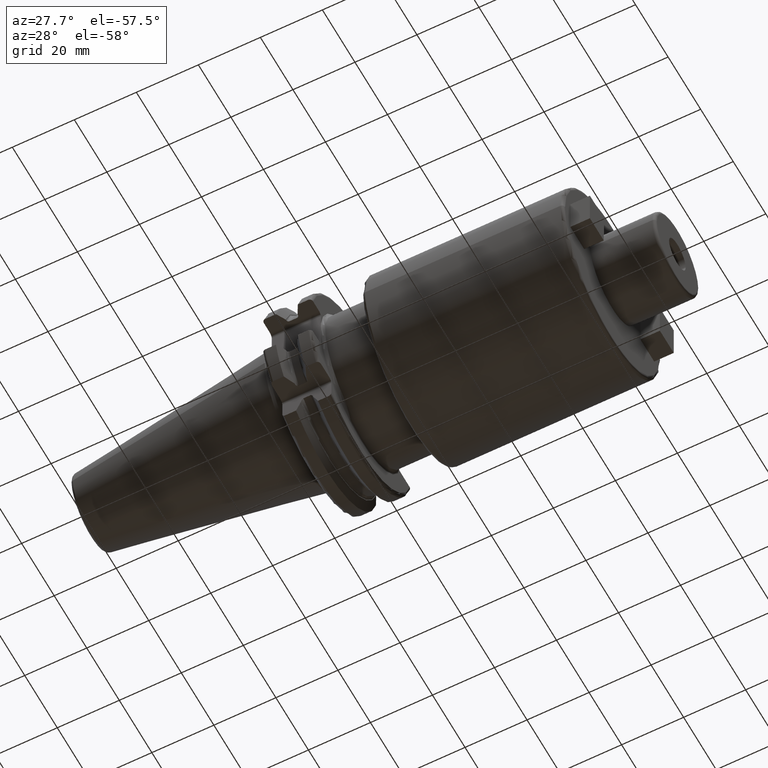
[diagram: clean part render]
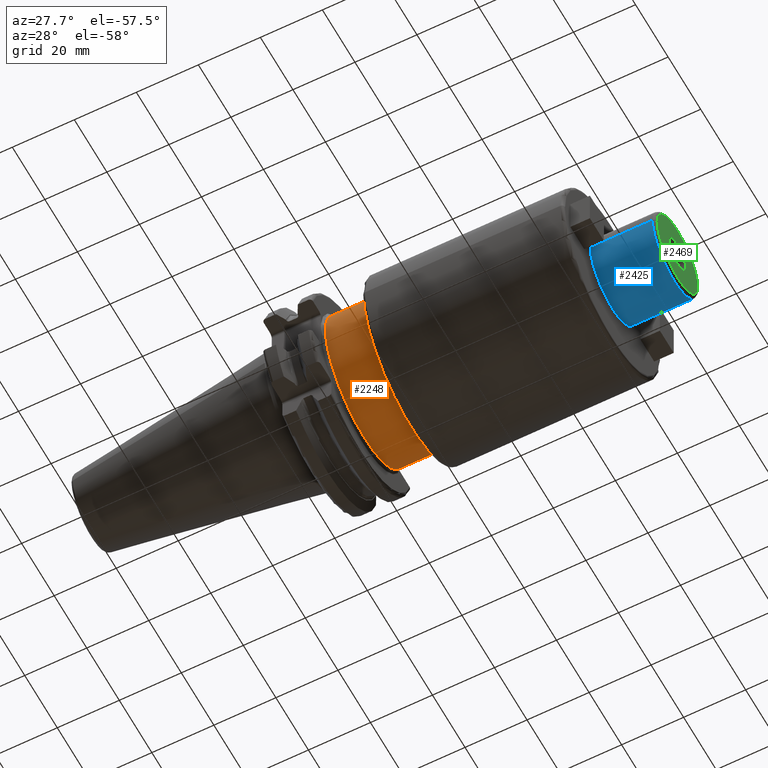
[diagram: same view with three faces highlighted in distinct colors, each labeled with its STEP entity id]
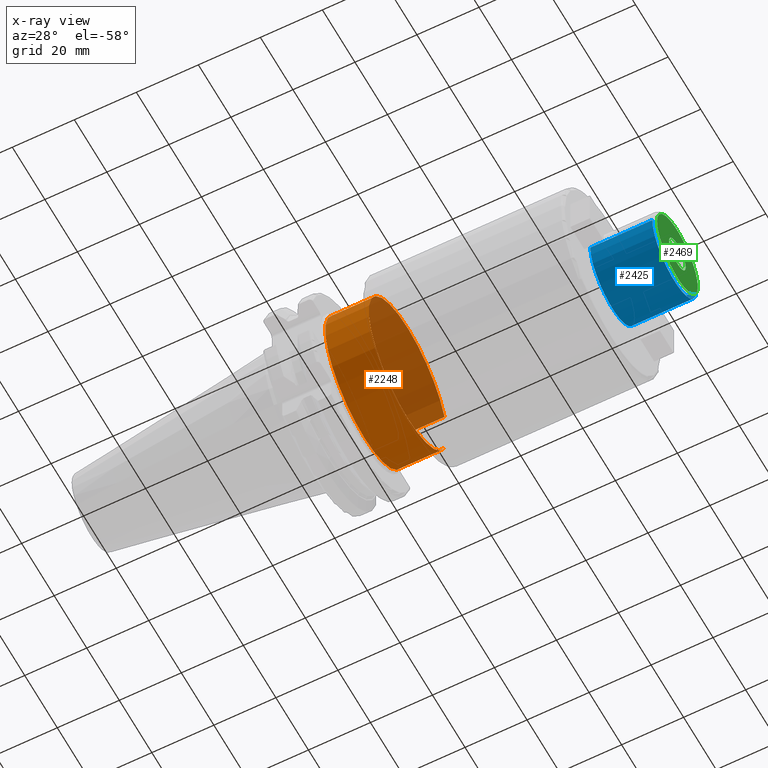
[diagram: x-ray of the same camera — body ghosted, the three highlighted faces saturated]
A machine part, auxiliary view with three faces highlighted in distinct colors.
The next image is the same camera in x-ray (body ghosted, the three faces saturated) — at least one of them is partly hidden behind the body in this view.
Their STEP definitions:

[orange] entity #2248 — the highlighted cylindrical surface (partial cylindrical patch) has radius 24 mm, axis along (1, 0, 0).
#299=DIRECTION('',(1.E0,0.E0,0.E0));
#300=VECTOR('',#299,1.4E1);
#301=CARTESIAN_POINT('',(2.005E1,2.255E1,-8.215686216014E0));
#302=LINE('',#301,#300);
#303=CARTESIAN_POINT('',(2.005E1,0.E0,0.E0));
#304=DIRECTION('',(-1.E0,0.E0,0.E0));
#305=DIRECTION('',(0.E0,9.395833333333E-1,-3.423202590006E-1));
#306=AXIS2_PLACEMENT_3D('',#303,#304,#305);
#308=DIRECTION('',(1.E0,0.E0,0.E0));
#309=VECTOR('',#308,1.4E1);
#310=CARTESIAN_POINT('',(2.005E1,2.255E1,8.215686216014E0));
#311=LINE('',#310,#309);
#334=CARTESIAN_POINT('',(3.405E1,0.E0,0.E0));
#335=DIRECTION('',(-1.E0,0.E0,0.E0));
#336=DIRECTION('',(0.E0,9.395833333333E-1,-3.423202590006E-1));
#337=AXIS2_PLACEMENT_3D('',#334,#335,#336);
#1824=CARTESIAN_POINT('',(2.005E1,2.255E1,8.215686216014E0));
#1825=CARTESIAN_POINT('',(3.405E1,2.255E1,8.215686216014E0));
#1826=VERTEX_POINT('',#1824);
#1827=VERTEX_POINT('',#1825);
#1828=CARTESIAN_POINT('',(2.005E1,2.255E1,-8.215686216014E0));
#1829=CARTESIAN_POINT('',(3.405E1,2.255E1,-8.215686216014E0));
#1830=VERTEX_POINT('',#1828);
#1831=VERTEX_POINT('',#1829);
#2236=CARTESIAN_POINT('',(1.39525E1,0.E0,0.E0));
#2237=DIRECTION('',(1.E0,0.E0,0.E0));
#2238=DIRECTION('',(0.E0,-1.E0,0.E0));
#2239=AXIS2_PLACEMENT_3D('',#2236,#2237,#2238);
#2240=CYLINDRICAL_SURFACE('',#2239,2.4E1);
#2242=ORIENTED_EDGE('',*,*,#2241,.F.);
#2243=ORIENTED_EDGE('',*,*,#2000,.F.);
#2244=ORIENTED_EDGE('',*,*,#2231,.T.);
#2245=ORIENTED_EDGE('',*,*,#2008,.T.);
#2246=EDGE_LOOP('',(#2242,#2243,#2244,#2245));
#2247=FACE_OUTER_BOUND('',#2246,.F.);
#2248=ADVANCED_FACE('',(#2247),#2240,.T.);
#307=CIRCLE('',#306,2.4E1);
#338=CIRCLE('',#337,2.4E1);
#2000=EDGE_CURVE('',#1830,#1831,#302,.T.);
#2008=EDGE_CURVE('',#1826,#1827,#311,.T.);
#2231=EDGE_CURVE('',#1830,#1826,#307,.T.);
#2241=EDGE_CURVE('',#1831,#1827,#338,.T.);

[blue] entity #2425 — the highlighted cylindrical surface (partial cylindrical patch) has radius 13.5 mm, axis along (1, 0, 0).
#420=CARTESIAN_POINT('',(1.E2,0.E0,0.E0));
#421=DIRECTION('',(-1.E0,0.E0,0.E0));
#422=DIRECTION('',(0.E0,1.E0,0.E0));
#423=AXIS2_PLACEMENT_3D('',#420,#421,#422);
#472=DIRECTION('',(-1.E0,0.E0,3.265733899610E-13));
#473=VECTOR('',#472,2.E1);
#474=CARTESIAN_POINT('',(1.2E2,1.35E1,-6.530365617100E-12));
#475=LINE('',#474,#473);
#476=DIRECTION('',(-1.E0,0.E0,-3.265530709909E-13));
#477=VECTOR('',#476,2.E1);
#478=CARTESIAN_POINT('',(1.2E2,-1.35E1,6.529959237699E-12));
#479=LINE('',#478,#477);
#480=CARTESIAN_POINT('',(1.2E2,0.E0,0.E0));
#481=DIRECTION('',(-1.E0,0.E0,0.E0));
#482=DIRECTION('',(0.E0,1.E0,0.E0));
#483=AXIS2_PLACEMENT_3D('',#480,#481,#482);
#1750=CARTESIAN_POINT('',(1.E2,1.35E1,0.E0));
#1751=CARTESIAN_POINT('',(1.E2,-1.35E1,0.E0));
#1752=VERTEX_POINT('',#1750);
#1753=VERTEX_POINT('',#1751);
#1768=CARTESIAN_POINT('',(1.2E2,1.35E1,-6.530365617100E-12));
#1769=VERTEX_POINT('',#1768);
#1770=CARTESIAN_POINT('',(1.2E2,-1.35E1,6.529959237699E-12));
#1771=VERTEX_POINT('',#1770);
#2413=CARTESIAN_POINT('',(1.39525E1,0.E0,0.E0));
#2414=DIRECTION('',(1.E0,0.E0,0.E0));
#2415=DIRECTION('',(0.E0,-1.E0,0.E0));
#2416=AXIS2_PLACEMENT_3D('',#2413,#2414,#2415);
#2417=CYLINDRICAL_SURFACE('',#2416,1.35E1);
#2418=ORIENTED_EDGE('',*,*,#2403,.T.);
#2419=ORIENTED_EDGE('',*,*,#2373,.T.);
#2420=ORIENTED_EDGE('',*,*,#2407,.F.);
#2422=ORIENTED_EDGE('',*,*,#2421,.F.);
#2423=EDGE_LOOP('',(#2418,#2419,#2420,#2422));
#2424=FACE_OUTER_BOUND('',#2423,.F.);
#2425=ADVANCED_FACE('',(#2424),#2417,.T.);
#424=CIRCLE('',#423,1.35E1);
#484=CIRCLE('',#483,1.35E1);
#2373=EDGE_CURVE('',#1752,#1753,#424,.T.);
#2403=EDGE_CURVE('',#1769,#1752,#475,.T.);
#2407=EDGE_CURVE('',#1771,#1753,#479,.T.);
#2421=EDGE_CURVE('',#1769,#1771,#484,.T.);

[green] entity #2469 — the highlighted planar face has unit normal (1, 0, 0).
#495=CARTESIAN_POINT('',(1.21E2,0.E0,0.E0));
#496=DIRECTION('',(-1.E0,0.E0,0.E0));
#497=DIRECTION('',(0.E0,1.E0,0.E0));
#498=AXIS2_PLACEMENT_3D('',#495,#496,#497);
#500=CARTESIAN_POINT('',(1.21E2,0.E0,0.E0));
#501=DIRECTION('',(-1.E0,0.E0,0.E0));
#502=DIRECTION('',(0.E0,-1.E0,0.E0));
#503=AXIS2_PLACEMENT_3D('',#500,#501,#502);
#505=CARTESIAN_POINT('',(1.21E2,0.E0,0.E0));
#506=DIRECTION('',(1.E0,0.E0,0.E0));
#507=DIRECTION('',(0.E0,-1.E0,0.E0));
#508=AXIS2_PLACEMENT_3D('',#505,#506,#507);
#510=CARTESIAN_POINT('',(1.21E2,0.E0,0.E0));
#511=DIRECTION('',(1.E0,0.E0,0.E0));
#512=DIRECTION('',(0.E0,1.E0,0.E0));
#513=AXIS2_PLACEMENT_3D('',#510,#511,#512);
#1772=CARTESIAN_POINT('',(1.21E2,1.25E1,0.E0));
#1773=CARTESIAN_POINT('',(1.21E2,-1.25E1,0.E0));
#1774=VERTEX_POINT('',#1772);
#1775=VERTEX_POINT('',#1773);
#1814=CARTESIAN_POINT('',(1.21E2,-5.1E0,0.E0));
#1815=CARTESIAN_POINT('',(1.21E2,5.1E0,0.E0));
#1816=VERTEX_POINT('',#1814);
#1817=VERTEX_POINT('',#1815);
#2454=CARTESIAN_POINT('',(1.21E2,0.E0,0.E0));
#2455=DIRECTION('',(1.E0,0.E0,0.E0));
#2456=DIRECTION('',(0.E0,-1.E0,0.E0));
#2457=AXIS2_PLACEMENT_3D('',#2454,#2455,#2456);
#2458=PLANE('',#2457);
#2459=ORIENTED_EDGE('',*,*,#2434,.T.);
#2460=ORIENTED_EDGE('',*,*,#2448,.T.);
#2461=EDGE_LOOP('',(#2459,#2460));
#2462=FACE_OUTER_BOUND('',#2461,.F.);
#2464=ORIENTED_EDGE('',*,*,#2463,.T.);
#2466=ORIENTED_EDGE('',*,*,#2465,.T.);
#2467=EDGE_LOOP('',(#2464,#2466));
#2468=FACE_BOUND('',#2467,.F.);
#2469=ADVANCED_FACE('',(#2462,#2468),#2458,.T.);
#499=CIRCLE('',#498,1.25E1);
#504=CIRCLE('',#503,1.25E1);
#509=CIRCLE('',#508,5.1E0);
#514=CIRCLE('',#513,5.1E0);
#2434=EDGE_CURVE('',#1774,#1775,#499,.T.);
#2448=EDGE_CURVE('',#1775,#1774,#504,.T.);
#2463=EDGE_CURVE('',#1816,#1817,#509,.T.);
#2465=EDGE_CURVE('',#1817,#1816,#514,.T.);